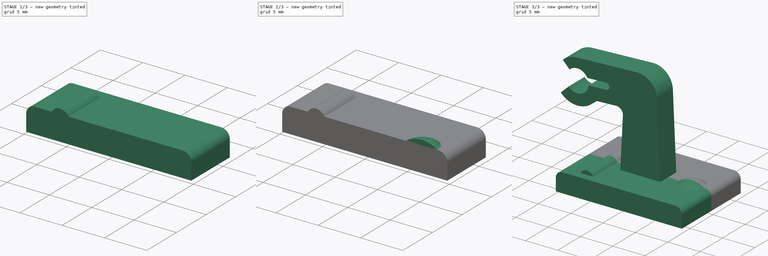
[diagram: build sequence overview — one tinted view per stage of 3, left to right]
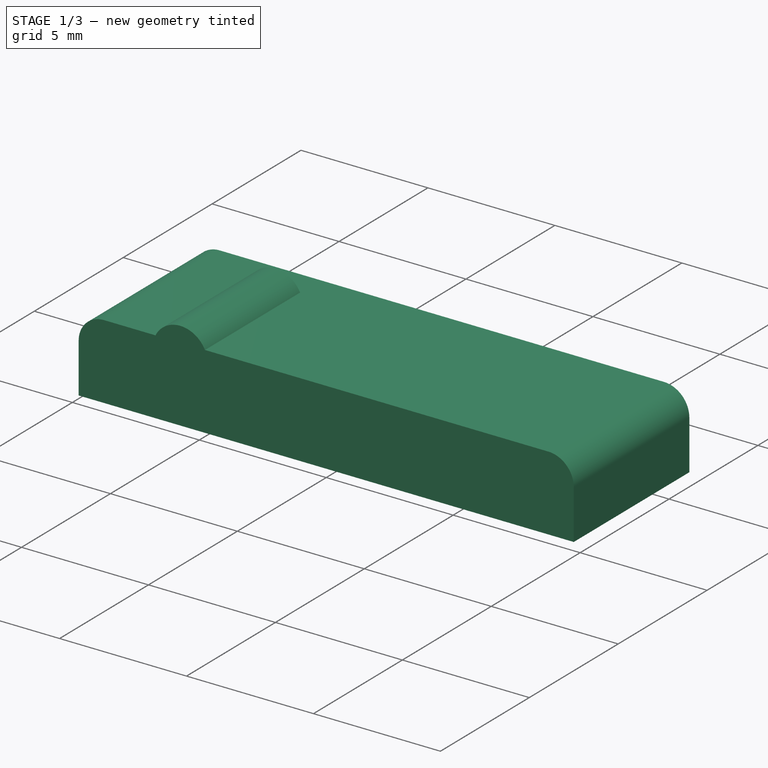
[diagram: stage 1 of 3 — iso view after this stage's code; geometry added in this stage tinted green]
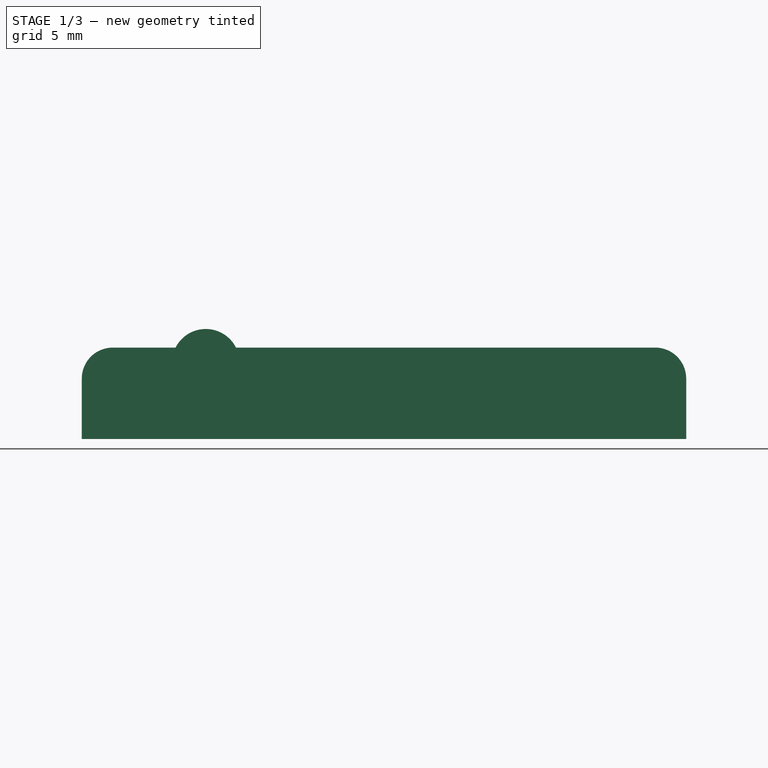
[diagram: stage 1 of 3 — front view after this stage's code; geometry added in this stage tinted green]
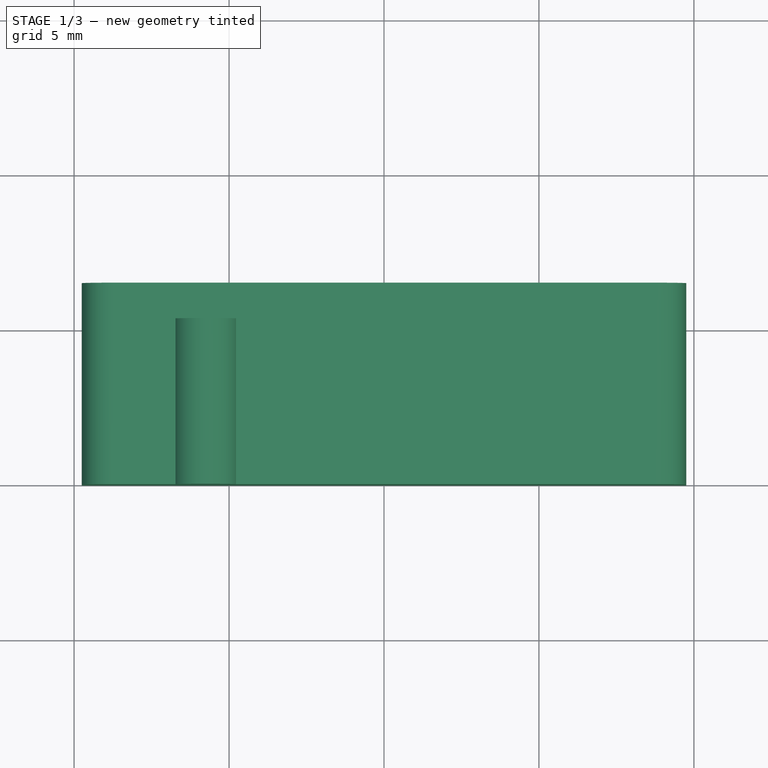
[diagram: stage 1 of 3 — top view after this stage's code; geometry added in this stage tinted green]
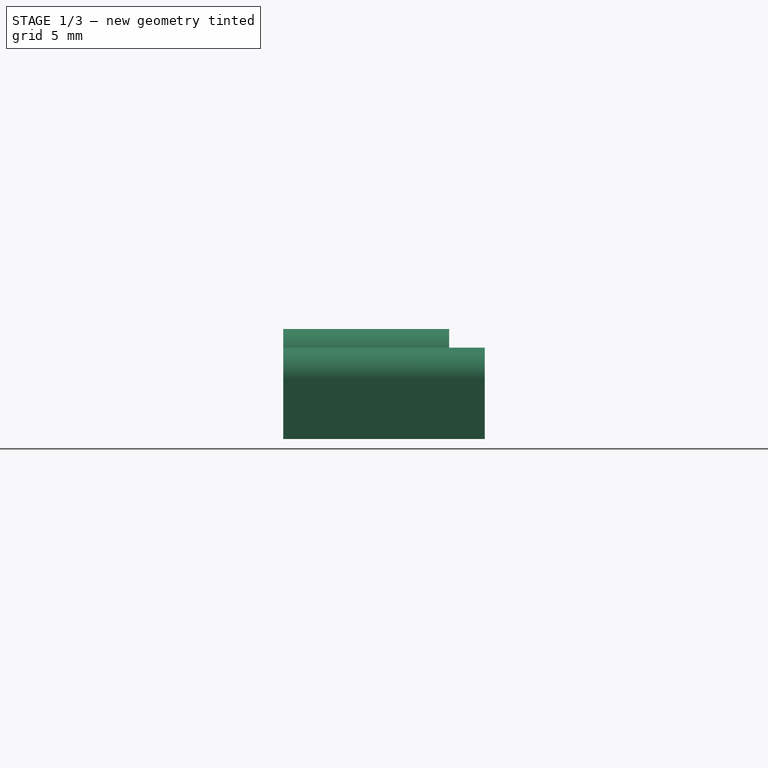
[diagram: stage 1 of 3 — right view after this stage's code; geometry added in this stage tinted green]
FCSTD DOCUMENT  (FreeCAD 0.22R34699 (Git))
Label: scharnier1
License: All rights reserved
LicenseURL: https://en.wikipedia.org/wiki/All_rights_reserved
objects: Sketcher::SketchObject×4, PartDesign::Pad×3, PartDesign::Revolution×1, PartDesign::Mirrored×1, PartDesign::Body×1
note: 14 computed .brp shape members not serialized (recipe doc carries the construction recipe); baked Part::Feature solids carry a one-line shape summary decoded from their .brp

FEATURE [Sketcher::SketchObject] Sketch
  FullyConstrained = true
  MapMode = 5
  Placement = pos=(0,0,0) rot=(1,0,0;1.5708rad)
  Support = -> [XZ_Plane]
  sketch-geometry (6):
    g0: LineSegment StartX=-9.75 StartY=0 StartZ=0 EndX=9.75 EndY=-1.0661e-12 EndZ=0
    g1: LineSegment StartX=9.75 StartY=-1.0661e-12 StartZ=0 EndX=9.75 EndY=1.95 EndZ=0
    g2: ArcOfCircle CenterX=8.75 CenterY=1.95 CenterZ=0 NormalX=0 NormalY=0 NormalZ=1 AngleXU=0 Radius=1 StartAngle=0 EndAngle=1.5708
    g3: LineSegment StartX=8.75 StartY=2.95 StartZ=0 EndX=-8.75 EndY=2.95 EndZ=0
    g4: ArcOfCircle CenterX=-8.75 CenterY=1.95 CenterZ=0 NormalX=0 NormalY=0 NormalZ=1 AngleXU=0 Radius=1 StartAngle=1.5708 EndAngle=3.14159
    g5: LineSegment StartX=-9.75 StartY=1.95 StartZ=0 EndX=-9.75 EndY=0 EndZ=0
  constraints (16):
    c: PointOnObject(g0,g-1)
    c: Coincident(g0,g1)
    c: Vertical(g1)
    c: Tangent(g1,g2) = -1.5708
    c: Horizontal(g3)
    c: Tangent(g3,g4) = -1.5708
    c: Coincident(g4,g5)
    c: Coincident(g5,g0)
    c: Vertical(g5)
    c: Radius(g4) = 1
    c: Radius(g2) = 1
    c: Tangent(g5,g4,g4) = -1.5708
    c: Tangent(g2,g3) = -1.5708
    c: DistanceX(g0,g0) = 19.5
    c: DistanceY(g0,g2) = 2.95
    c: Symmetric(g0,g0,g-1)
FEATURE [PartDesign::Pad] Pad  label="base"
  Direction = (0,-1,2e-16)
  Length = 6.5
  Length2 = 10
  Placement = pos=(0,0,0) rot=(1,0,0;1.5708rad)
  Profile = -> Sketch
  ReferenceAxis = -> Sketch [N_Axis]
  Reversed = true
  Type = 0
  expr: Length = 13 / 2
FEATURE [Sketcher::SketchObject] Sketch001
  ExternalGeometry = -> [Pad]
  FullyConstrained = true
  MapMode = 5
  Placement = pos=(0,0,0) rot=(1,0,0;1.5708rad)
  Support = -> [XZ_Plane]
  sketch-geometry (3):
    g0: ArcOfCircle CenterX=-5.75 CenterY=2.45781 CenterZ=0 NormalX=0 NormalY=0 NormalZ=1 AngleXU=0 Radius=1.09219 StartAngle=0.467486 EndAngle=2.67411
    g1: LineSegment StartX=-6.725 StartY=2.95 StartZ=0 EndX=-4.775 EndY=2.95 EndZ=0
    g2: GeomPoint X=-5.75 Y=3.55 Z=0
  constraints (9):
    c: PointOnObject(g0,g-3)
    c: PointOnObject(g0,g-3)
    c: Coincident(g1,g0)
    c: Coincident(g1,g0)
    c: DistanceX(g-4,g0) = 4
    c: DistanceX(g0,g0) = 1.95
    c: PointOnObject(g2,g0)
    c: DistanceY(g-4,g2) = 3.55
    c: Vertical(g2,g0)
FEATURE [PartDesign::Pad] Pad001  label="zylinder"
  BaseFeature = -> Pad
  Direction = (0,-1,2e-16)
  Length = 5.35
  Length2 = 10
  Placement = pos=(0,0,0) rot=(1,0,0;1.5708rad)
  Profile = -> Sketch001
  ReferenceAxis = -> Sketch001 [N_Axis]
  Reversed = true
  Type = 0
  expr: Length = 10.7 / 2
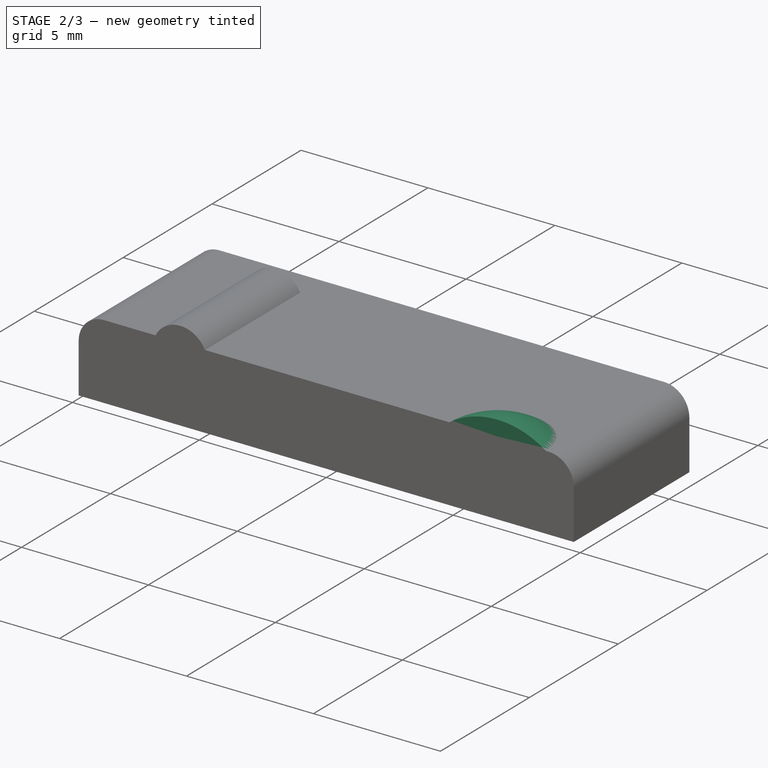
[diagram: stage 2 of 3 — iso view after this stage's code; geometry added in this stage tinted green]
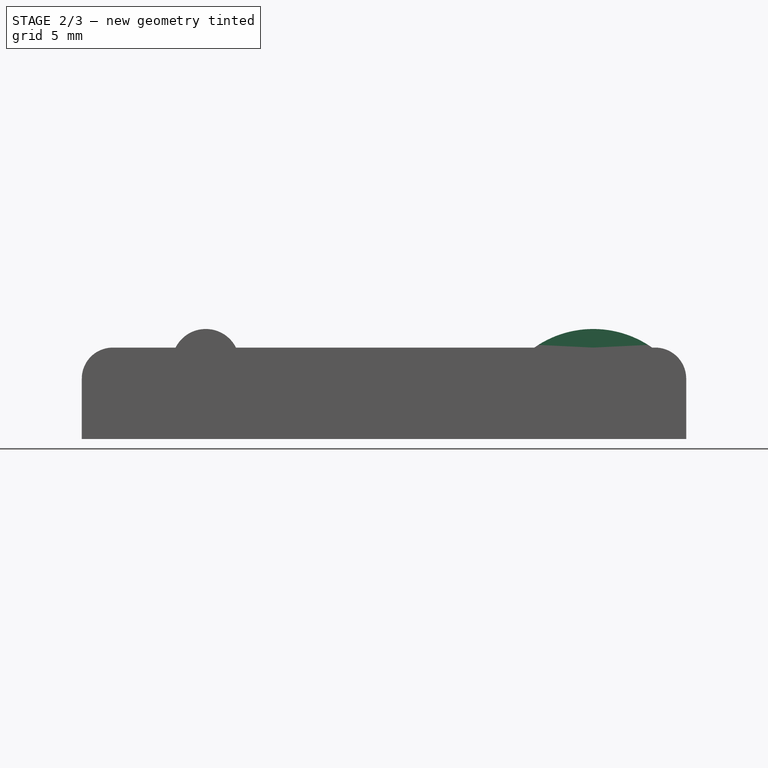
[diagram: stage 2 of 3 — front view after this stage's code; geometry added in this stage tinted green]
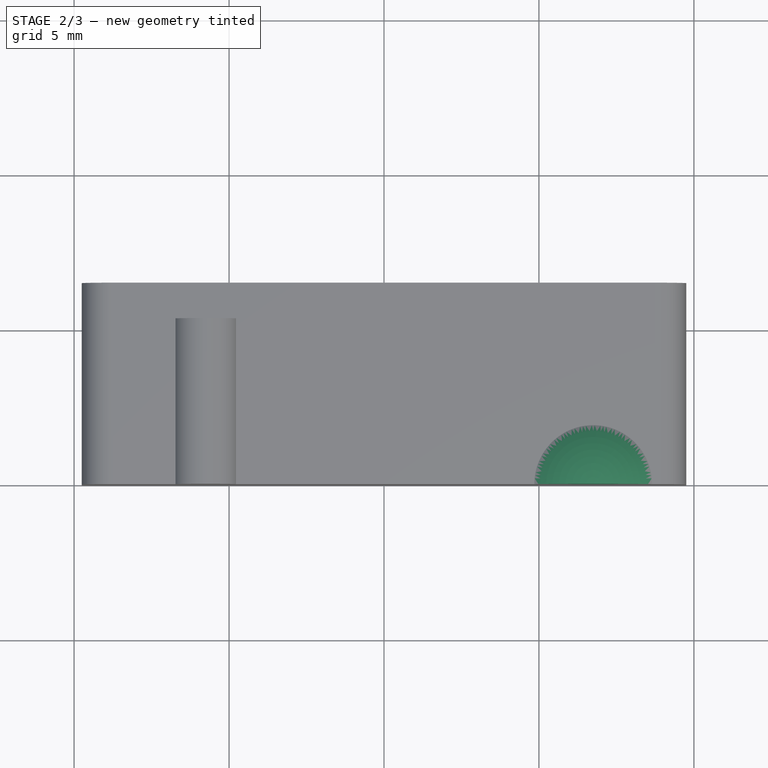
[diagram: stage 2 of 3 — top view after this stage's code; geometry added in this stage tinted green]
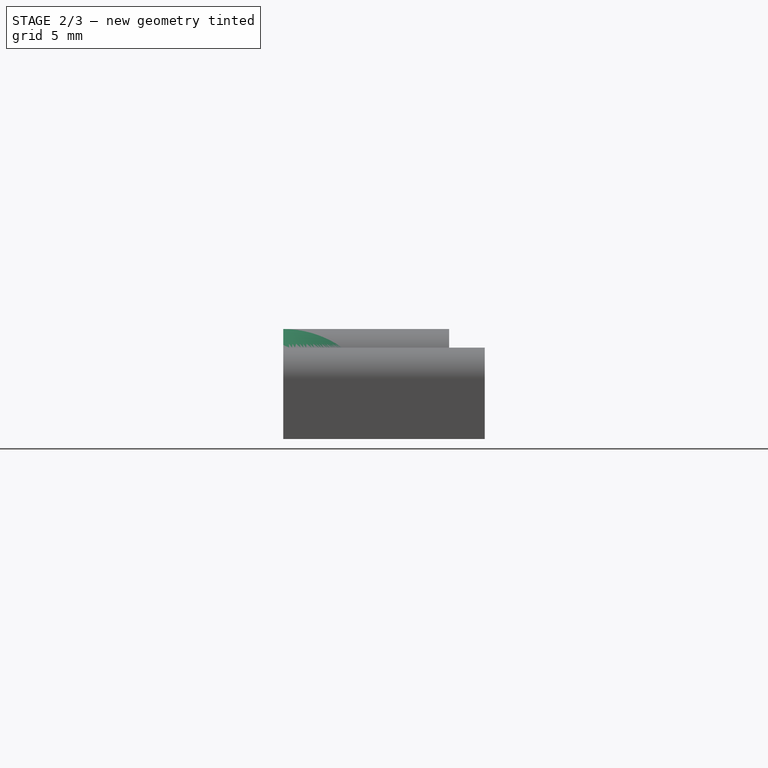
[diagram: stage 2 of 3 — right view after this stage's code; geometry added in this stage tinted green]
FEATURE [Sketcher::SketchObject] Sketch002
  ExternalGeometry = -> [Pad001]
  FullyConstrained = true
  MapMode = 5
  Placement = pos=(0,0,0) rot=(1,0,0;1.5708rad)
  Support = -> [XZ_Plane]
  expr: Constraints[8] = 3.8 / 2
  sketch-geometry (3):
    g0: ArcOfCircle CenterX=6.75 CenterY=0.241667 CenterZ=0 NormalX=0 NormalY=0 NormalZ=1 AngleXU=0 Radius=3.30833 StartAngle=0.959039 EndAngle=1.5708
    g1: LineSegment StartX=8.65 StartY=2.95 StartZ=0 EndX=6.75 EndY=0.241667 EndZ=0
    g2: LineSegment StartX=6.75 StartY=3.55 StartZ=0 EndX=6.75 EndY=0.241667 EndZ=0
  constraints (9):
    c: PointOnObject(g0,g-3)
    c: Coincident(g1,g0)
    c: Coincident(g1,g0)
    c: Coincident(g2,g0)
    c: Coincident(g2,g0)
    c: Vertical(g2)
    c: DistanceY(g-4,g0) = 3.55
    c: DistanceX(g0,g-4) = 3
    c: DistanceX(g0,g0) = 1.9
FEATURE [PartDesign::Revolution] Revolution
  Angle = 180
  Axis = (0,-2e-16,-1)
  Base = (6.75,8e-16,3.55)
  BaseFeature = -> Pad001
  Placement = pos=(0,0,0) rot=(1,0,0;1.5708rad)
  Profile = -> Sketch002
  ReferenceAxis = -> Sketch002 [Edge2]
  Reversed = true
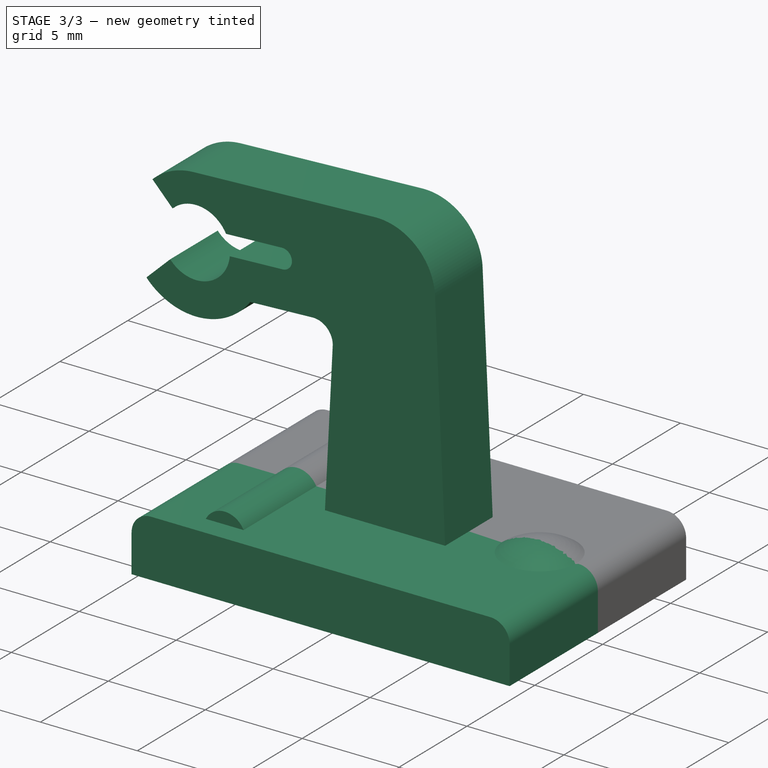
[diagram: stage 3 of 3 — iso view after this stage's code; geometry added in this stage tinted green]
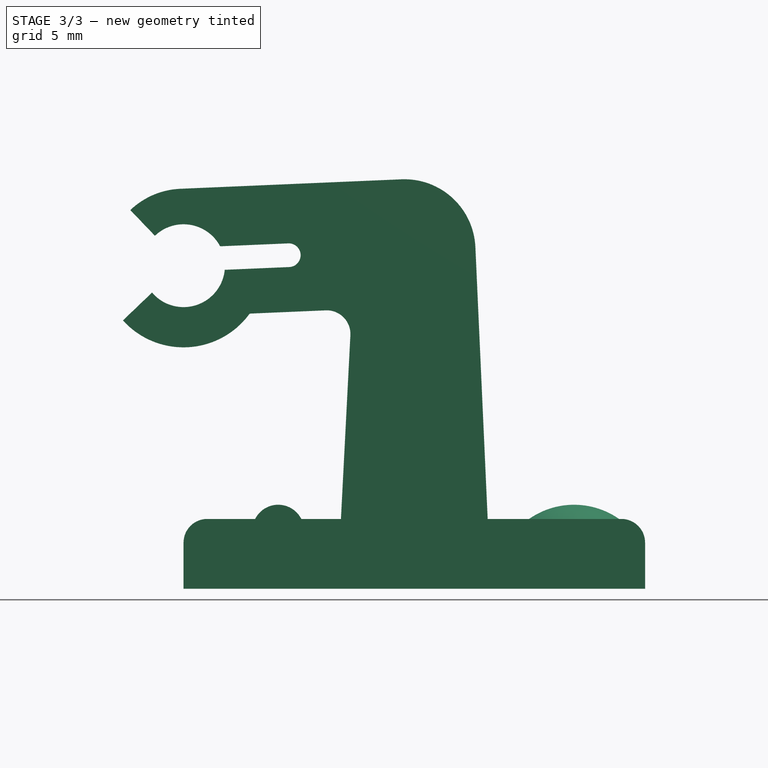
[diagram: stage 3 of 3 — front view after this stage's code; geometry added in this stage tinted green]
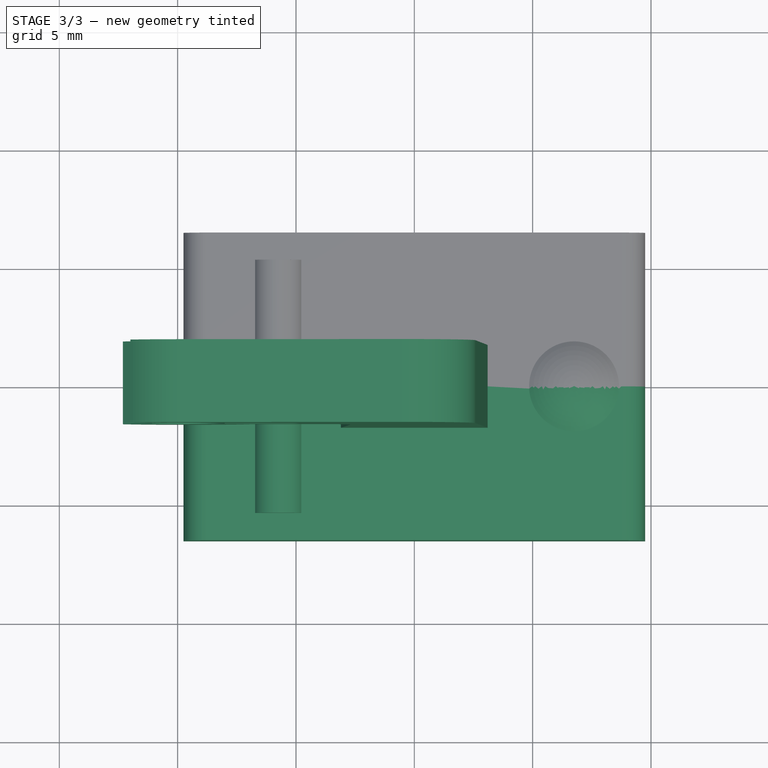
[diagram: stage 3 of 3 — top view after this stage's code; geometry added in this stage tinted green]
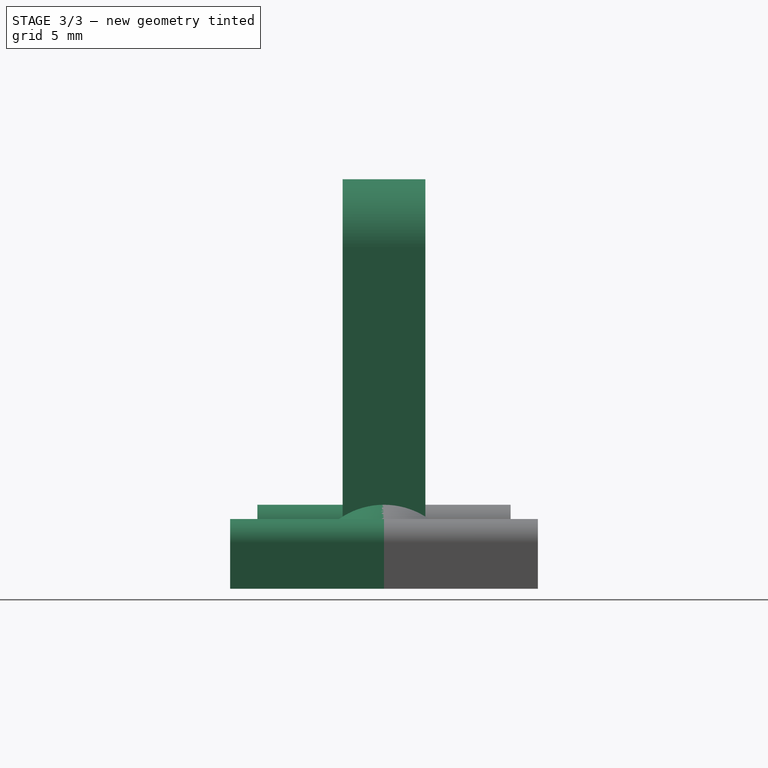
[diagram: stage 3 of 3 — right view after this stage's code; geometry added in this stage tinted green]
FEATURE [Sketcher::SketchObject] Sketch003
  ExternalGeometry = -> [Revolution]
  FullyConstrained = false
  MapMode = 5
  Placement = pos=(0,0,0) rot=(1,0,0;1.5708rad)
  Support = -> [XZ_Plane]
  sketch-geometry (25):
    g0: LineSegment StartX=-3.1 StartY=2.95 StartZ=0 EndX=3.1 EndY=2.95 EndZ=0
    g1: LineSegment StartX=3.1 StartY=2.95 StartZ=0 EndX=2.5807 EndY=14.4382 EndZ=0
    g2: ArcOfCircle CenterX=-0.416243 CenterY=14.3028 CenterZ=0 NormalX=0 NormalY=0 NormalZ=1 AngleXU=0 Radius=3 StartAngle=0.0451724 EndAngle=1.61364
    g3: LineSegment StartX=-0.544721 StartY=17.3 StartZ=0 EndX=-9.88929 EndY=16.8994 EndZ=0
    g4: LineSegment StartX=-3.1 StartY=2.95 StartZ=0 EndX=-2.70089 EndY=10.7125 EndZ=0
    g5: ArcOfCircle CenterX=-3.69957 CenterY=10.7638 CenterZ=0 NormalX=0 NormalY=0 NormalZ=1 AngleXU=0 Radius=1 StartAngle=6.23182 EndAngle=7.89682
    g6: LineSegment StartX=-3.7424 StartY=11.7629 StartZ=0 EndX=-6.956 EndY=11.6252 EndZ=0
    g7: ArcOfCircle CenterX=-9.75 CenterY=13.65 CenterZ=0 NormalX=0 NormalY=0 NormalZ=1 AngleXU=0 Radius=3.45056 StartAngle=3.876 EndAngle=5.65607
    g8: LineSegment StartX=-12.3111 StartY=11.3376 StartZ=0 EndX=-11.0815 EndY=12.5143 EndZ=0
    g9: ArcOfCircle CenterX=-9.75 CenterY=13.65 CenterZ=0 NormalX=0 NormalY=0 NormalZ=1 AngleXU=0 Radius=3.25243 StartAngle=1.61364 EndAngle=2.33421
    g10: LineSegment StartX=-11.9987 StartY=15.9998 StartZ=0 EndX=-10.9599 EndY=14.9143 EndZ=0
    g11: ArcOfCircle CenterX=-9.75 CenterY=13.65 CenterZ=0 NormalX=0 NormalY=0 NormalZ=1 AngleXU=0 Radius=1.75 StartAngle=3.84779 EndAngle=6.18355
    g12: ArcOfCircle CenterX=-5.30415 CenterY=14.0928 CenterZ=0 NormalX=0 NormalY=0 NormalZ=1 AngleXU=0 Radius=0.500459 StartAngle=4.75523 EndAngle=7.89682
    g13: LineSegment StartX=-5.28271 StartY=13.5928 StartZ=0 EndX=-8.00868 EndY=13.4759 EndZ=0
    g14: ArcOfCircle CenterX=-9.75 CenterY=13.65 CenterZ=0 NormalX=0 NormalY=0 NormalZ=1 AngleXU=0 Radius=1.75 StartAngle=0.487286 EndAngle=2.33421
    g15: Circle CenterX=-9.75 CenterY=13.65 CenterZ=0 NormalX=0 NormalY=0 NormalZ=1 AngleXU=0 Radius=1.75
    g16: LineSegment StartX=-8.20369 StartY=14.4694 StartZ=0 EndX=-5.32558 EndY=14.5928 EndZ=0
    g17: GeomPoint X=-9.75 Y=10.1994 Z=0
    g18: GeomPoint X=2.74911 Y=10.7125 Z=0
    g19: GeomPoint X=-3.7424 Y=17.1629 Z=0
    g20: GeomPoint X=-4.80369 Y=14.0928 Z=0
    g21: GeomPoint X=2.59631 Y=14.0928 Z=0
    g22: LineSegment StartX=-11.9987 StartY=15.9998 StartZ=0 EndX=-9.75 EndY=13.65 EndZ=0
    g23: GeomPoint X=-9.75 Y=15.4 Z=0
    g24: LineSegment StartX=-6.77043 StartY=17.0331 StartZ=0 EndX=-6.66337 EndY=14.5354 EndZ=0
  constraints (62):
    c: PointOnObject(g0,g-3)
    c: Coincident(g0,g1)
    c: Tangent(g1,g2) = -1.5708
    c: Tangent(g2,g3) = -1.5708
    c: Coincident(g0,g4)
    c: Tangent(g4,g5) = -1.5708
    c: Tangent(g5,g6) = -1.5708
    c: Coincident(g8,g7)
    c: Tangent(g9,g3) = -1.5708
    c: Coincident(g10,g9)
    c: Coincident(g11,g7)
    c: Coincident(g11,g8)
    c: Coincident(g13,g11)
    c: Coincident(g14,g9)
    c: Coincident(g14,g10)
    c: Coincident(g7,g9)
    c: Coincident(g6,g7)
    c: Coincident(g15,g7)
    c: Diameter(g15) = 3.5
    c: PointOnObject(g14,g15)
    c: PointOnObject(g11,g15)
    c: DistanceY(g8,g10) = 2.4
    c: Coincident(g16,g14)
    c: Tangent(g16,g12) = 1.5708
    c: Tangent(g13,g12) = 1.5708
    c: PointOnObject(g17,g7)
    c: Vertical(g17,g7)
    c: DistanceY(g17,g3) = 6.7
    c: DistanceX(g0,g0) = 6.2
    c: PointOnObject(g18,g1)
    c: Horizontal(g4,g18)
    c: DistanceX(g4,g18) = 5.45
    c: DistanceY(g-1,g2) = 17.3
    c: Symmetric(g0,g0,g-2)
    c: PointOnObject(g19,g3)
    c: Vertical(g19,g5)
    c: DistanceY(g5,g19) = 5.4
    c: PointOnObject(g20,g12)
    c: PointOnObject(g21,g1)
    c: Horizontal(g20,g21)
    c: Horizontal(g21,g12)
    c: DistanceX(g20,g21) = 7.4
    c: DistanceY(g12,g12) = 1
    c: Coincident(g22,g9)
    c: Coincident(g22,g7)
    c: PointOnObject(g10,g22)
    c: Distance(g9,g-4) = 27
    c: Vertical(g7,g-5)
    c: PointOnObject(g23,g14)
    c: Vertical(g23,g7)
    c: DistanceY(g-5,g23) = 15.4
    c: Parallel(g3,g6)
    c: Parallel(g16,g3)
    c: Parallel(g13,g6)
    c: Radius(g2) = 3
    c: Radius(g5) = 1
    c: DistanceX(g14,g20) = 3.4
    c: PointOnObject(g24,g3)
    c: PointOnObject(g24,g16)
    c: Perpendicular(g3,g24)
    c: Distance(g24,g24) = 2.5
    c: Perpendicular(g10,g8)
FEATURE [PartDesign::Pad] Pad002
  BaseFeature = -> Revolution
  Direction = (0,-1,2e-16)
  Length = 1.75
  Length2 = 10
  Placement = pos=(0,0,0) rot=(1,0,0;1.5708rad)
  Profile = -> Sketch003
  ReferenceAxis = -> Sketch003 [N_Axis]
  Reversed = true
  Type = 0
  expr: Length = 3.5 / 2
FEATURE [PartDesign::Mirrored] Mirrored
  BaseFeature = -> Pad002
  MirrorPlane = -> XZ_Plane
  Originals = -> [Pad,Pad001,Revolution,Pad002]
  Placement = pos=(0,0,0) rot=(1,0,0;1.5708rad)
FEATURE [PartDesign::Body] Body  label="Körper"
  Group = -> [Sketch,Pad,Sketch001,Pad001,Sketch002,Revolution,Sketch003,Pad002,Mirrored]
  Origin = -> Origin
  Tip = -> Mirrored
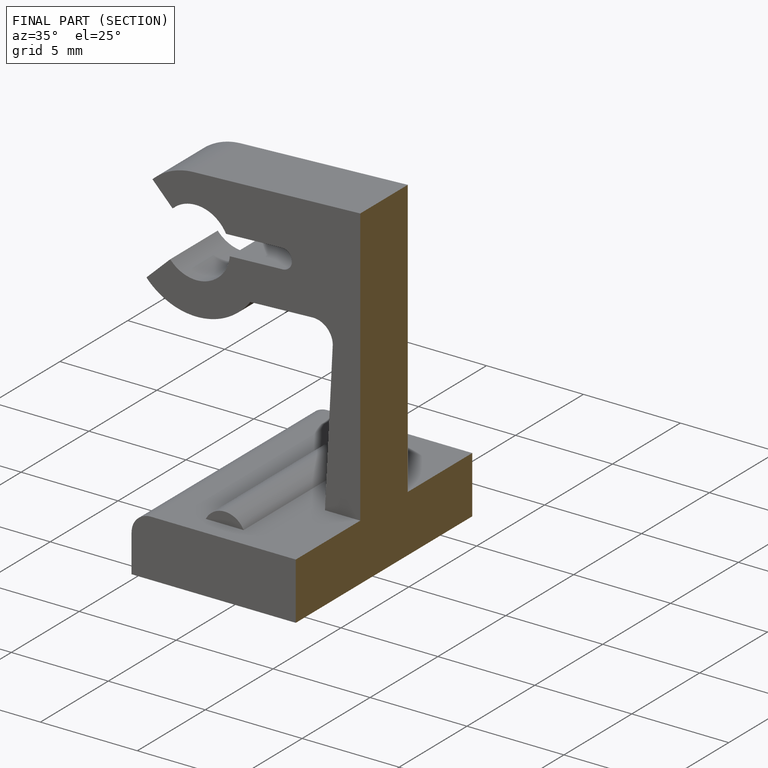
[diagram: finished part — half-section view (interior)]
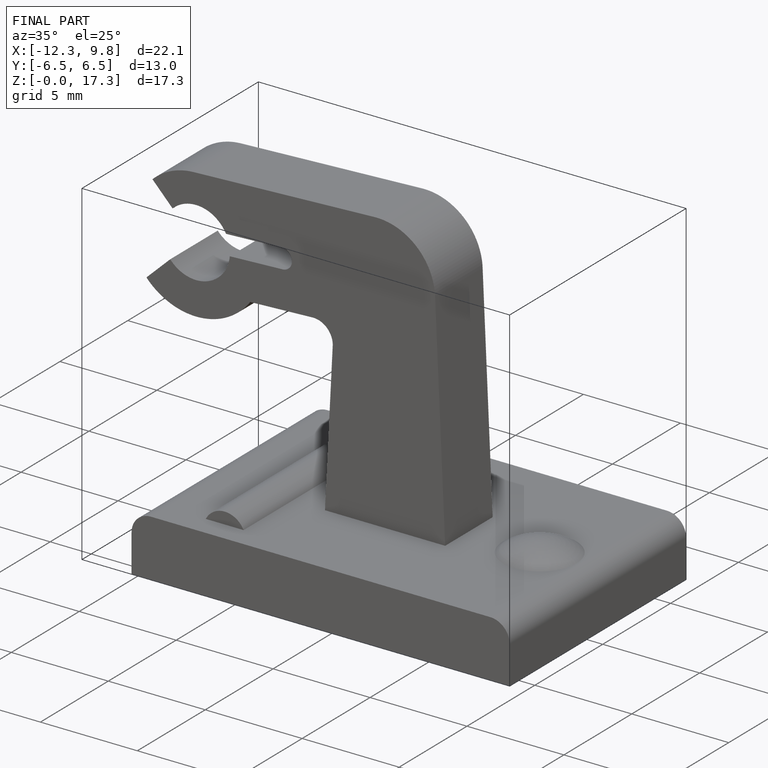
[diagram: finished part — iso view with bounding-box wireframe]
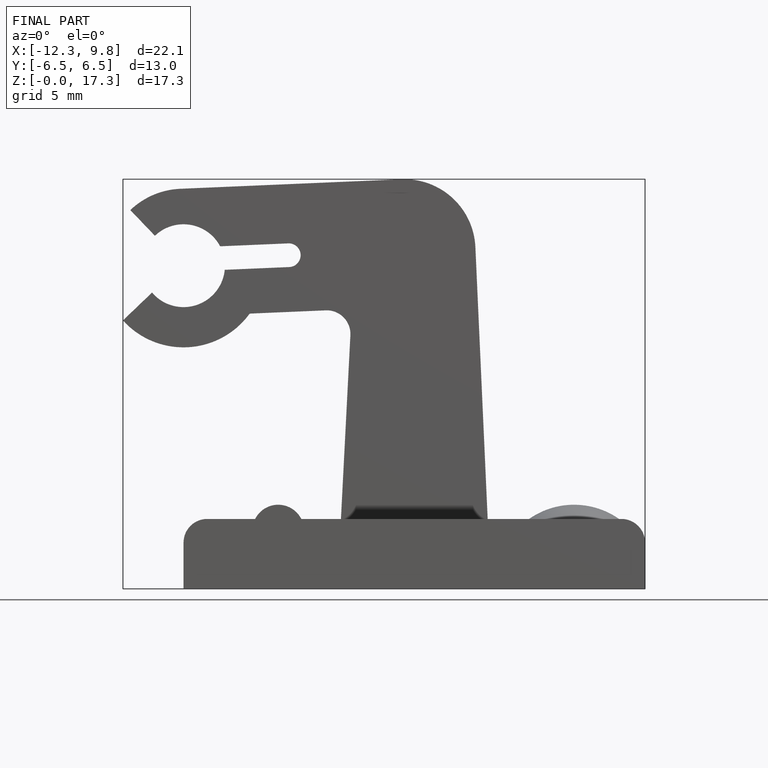
[diagram: finished part — front view with bounding-box wireframe]
